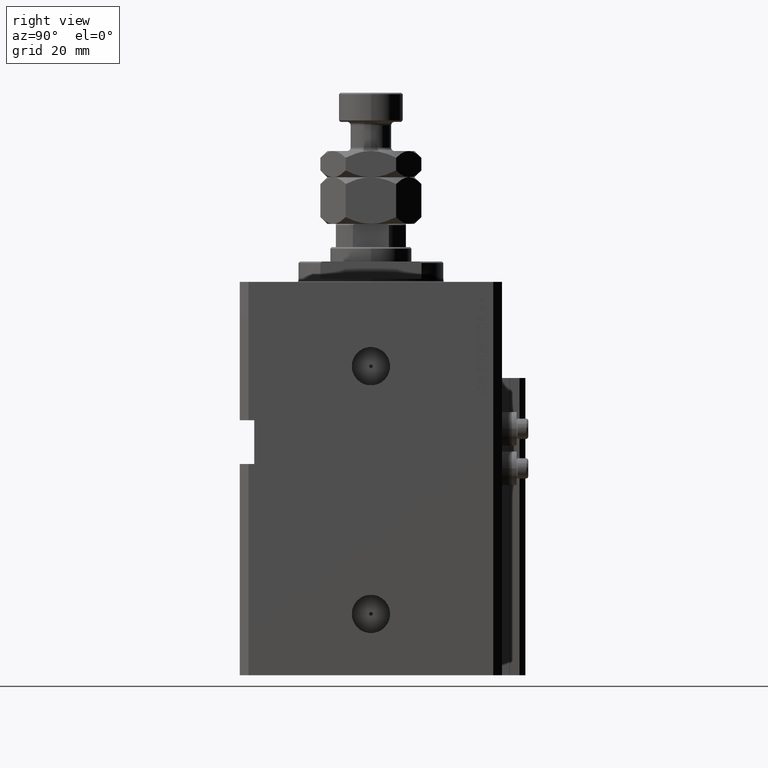
[diagram: clean part render]
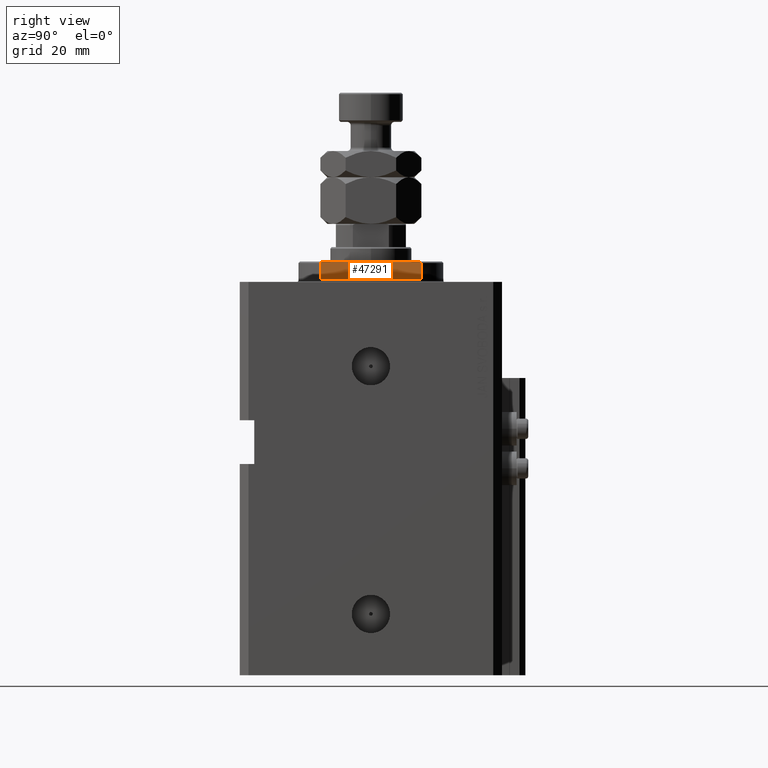
[diagram: same view with one face highlighted and labeled with its STEP entity id]
A machine part, right view. The second image highlights one B-rep face of the part: STEP entity #47291.
In plain terms, the highlighted planar face has unit normal (-1, 0, 0).
Its self-contained STEP definition (entity closure, byte-faithful):
#2414 = LINE ( 'NONE', #25851, #15800 ) ;
#3665 = VECTOR ( 'NONE', #10752, 1000.000000000000000 ) ;
#6275 = DIRECTION ( 'NONE',  ( 0.000000000000000000, 0.000000000000000000, -1.000000000000000000 ) ) ;
#8268 = CARTESIAN_POINT ( 'NONE',  ( -18.00000000000000000, -17.10749533145903456, -6.667841958512576994 ) ) ;
#8447 = EDGE_CURVE ( 'NONE', #42460, #45145, #9746, .T. ) ;
#9746 = LINE ( 'NONE', #48848, #3665 ) ;
#10752 = DIRECTION ( 'NONE',  ( -0.000000000000000000, -0.000000000000000000, 1.000000000000000000 ) ) ;
#10832 = EDGE_CURVE ( 'NONE', #42460, #35297, #36370, .T. ) ;
#13677 = CARTESIAN_POINT ( 'NONE',  ( -18.00000000000000000, -17.34935157289747920, -6.499999999999969802 ) ) ;
#15800 = VECTOR ( 'NONE', #37674, 1000.000000000000000 ) ;
#16296 = ORIENTED_EDGE ( 'NONE', *, *, #43830, .F. ) ;
#17408 = CARTESIAN_POINT ( 'NONE',  ( -18.00000000000000000, 17.34935157289748986, -6.499999999999978684 ) ) ;
#17534 = CARTESIAN_POINT ( 'NONE',  ( -18.00000000000000000, -17.34935157289747920, -6.499999999999969802 ) ) ;
#17891 = LINE ( 'NONE', #30470, #36327 ) ;
#19267 = CARTESIAN_POINT ( 'NONE',  ( -18.00000000000000000, 17.34935157289748986, -6.499999999999978684 ) ) ;
#20034 = DIRECTION ( 'NONE',  ( 0.000000000000000000, 0.000000000000000000, -1.000000000000000000 ) ) ;
#20452 = CARTESIAN_POINT ( 'NONE',  ( -18.00000000000000000, -17.34935157289747920, -1.000000000000000000 ) ) ;
#20545 = FACE_OUTER_BOUND ( 'NONE', #48847, .T. ) ;
#21238 = VERTEX_POINT ( 'NONE', #13677 ) ;
#24137 = CARTESIAN_POINT ( 'NONE',  ( -18.00000000000000000, 17.10737464676705955, -6.667925710558598063 ) ) ;
#25409 = VECTOR ( 'NONE', #37342, 1000.000000000000000 ) ;
#25851 = CARTESIAN_POINT ( 'NONE',  ( -18.00000000000000000, -41.24318125460256113, -7.000000000000000000 ) ) ;
#26515 = CARTESIAN_POINT ( 'NONE',  ( -18.00000000000000000, -41.24318125460256113, -1.000000000000000000 ) ) ;
#27986 = CARTESIAN_POINT ( 'NONE',  ( -18.00000000000000000, 17.34935157289747920, -1.000000000000000000 ) ) ;
#30376 = LINE ( 'NONE', #26515, #25409 ) ;
#30470 = CARTESIAN_POINT ( 'NONE',  ( -18.00000000000000000, -17.34935157289747920, -7.000000000000000000 ) ) ;
#31342 = CARTESIAN_POINT ( 'NONE',  ( -18.00000000000000000, 16.86453887646376515, -6.834627585342924583 ) ) ;
#32121 = DIRECTION ( 'NONE',  ( 1.000000000000000000, 0.000000000000000000, 0.000000000000000000 ) ) ;
#32503 = ORIENTED_EDGE ( 'NONE', *, *, #32844, .T. ) ;
#32844 = EDGE_CURVE ( 'NONE', #48384, #21238, #36685, .T. ) ;
#35227 = CARTESIAN_POINT ( 'NONE',  ( -18.00000000000000000, -41.24318125460256113, -1.000000000000000000 ) ) ;
#35297 = VERTEX_POINT ( 'NONE', #35700 ) ;
#35700 = CARTESIAN_POINT ( 'NONE',  ( -18.00000000000000000, 16.62077013859462227, -7.000000000000000000 ) ) ;
#35865 = EDGE_CURVE ( 'NONE', #35297, #48384, #2414, .T. ) ;
#36327 = VECTOR ( 'NONE', #6275, 1000.000000000000000 ) ;
#36370 = B_SPLINE_CURVE_WITH_KNOTS ( 'NONE', 3,
 ( #19267, #24137, #31342, #43670 ),
 .UNSPECIFIED., .F., .F.,
 ( 4, 4 ),
 ( 0.04589228951331418560, 0.04678015196826892930 ),
 .UNSPECIFIED. ) ;
#36685 = B_SPLINE_CURVE_WITH_KNOTS ( 'NONE', 3,
 ( #40674, #43513, #8268, #17534 ),
 .UNSPECIFIED., .F., .F.,
 ( 4, 4 ),
 ( 0.08262823419570403116, 0.08350100171199385801 ),
 .UNSPECIFIED. ) ;
#37342 = DIRECTION ( 'NONE',  ( -0.000000000000000000, -1.000000000000000000, -0.000000000000000000 ) ) ;
#37674 = DIRECTION ( 'NONE',  ( -0.000000000000000000, -1.000000000000000000, -0.000000000000000000 ) ) ;
#40422 = ORIENTED_EDGE ( 'NONE', *, *, #10832, .T. ) ;
#40674 = CARTESIAN_POINT ( 'NONE',  ( -18.00000000000000000, -16.62077013859462227, -7.000000000000000000 ) ) ;
#41449 = ORIENTED_EDGE ( 'NONE', *, *, #50737, .F. ) ;
#42431 = ORIENTED_EDGE ( 'NONE', *, *, #8447, .F. ) ;
#42460 = VERTEX_POINT ( 'NONE', #17408 ) ;
#43513 = CARTESIAN_POINT ( 'NONE',  ( -18.00000000000000000, -16.86466398118529852, -6.834542714452329193 ) ) ;
#43670 = CARTESIAN_POINT ( 'NONE',  ( -18.00000000000000000, 16.62077013859462227, -7.000000000000000000 ) ) ;
#43830 = EDGE_CURVE ( 'NONE', #45145, #45464, #30376, .T. ) ;
#45145 = VERTEX_POINT ( 'NONE', #27986 ) ;
#45464 = VERTEX_POINT ( 'NONE', #20452 ) ;
#46484 = CARTESIAN_POINT ( 'NONE',  ( -18.00000000000000000, -16.62077013859462227, -7.000000000000000000 ) ) ;
#47070 = ORIENTED_EDGE ( 'NONE', *, *, #35865, .T. ) ;
#47291 = ADVANCED_FACE ( 'NONE', ( #20545 ), #47791, .F. ) ;
#47791 = PLANE ( 'NONE',  #50180 ) ;
#48384 = VERTEX_POINT ( 'NONE', #46484 ) ;
#48847 = EDGE_LOOP ( 'NONE', ( #40422, #47070, #32503, #41449, #16296, #42431 ) ) ;
#48848 = CARTESIAN_POINT ( 'NONE',  ( -18.00000000000000000, 17.34935157289747920, -7.000000000000000000 ) ) ;
#50180 = AXIS2_PLACEMENT_3D ( 'NONE', #35227, #32121, #20034 ) ;
#50737 = EDGE_CURVE ( 'NONE', #45464, #21238, #17891, .T. ) ;